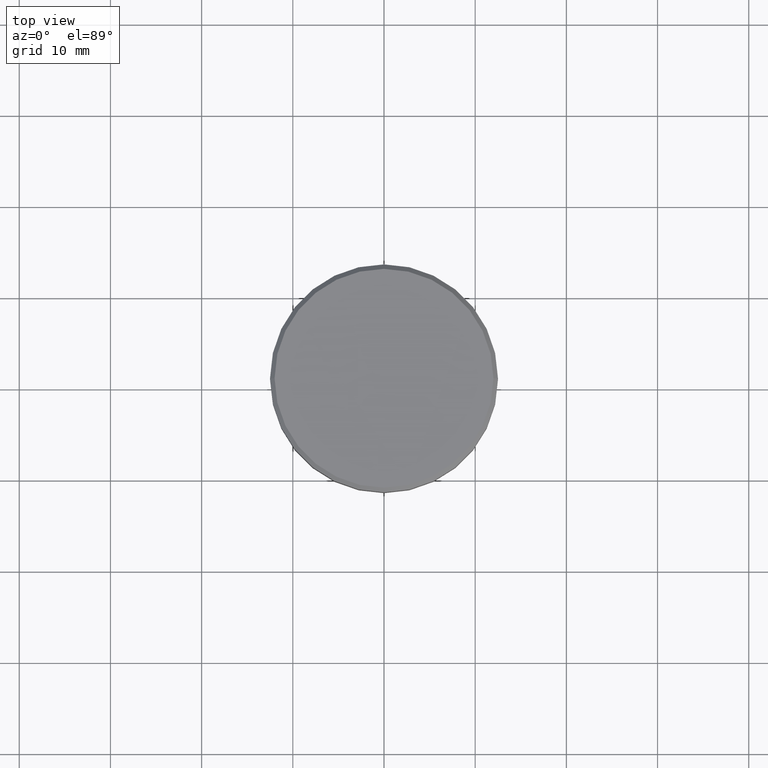
[diagram: clean part render]
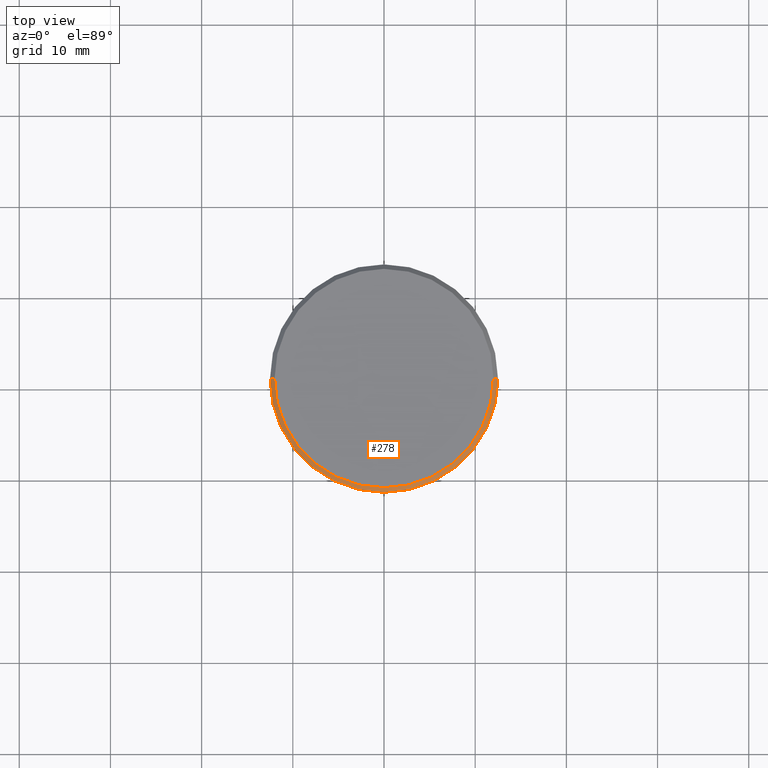
[diagram: same view with one face highlighted and labeled with its STEP entity id]
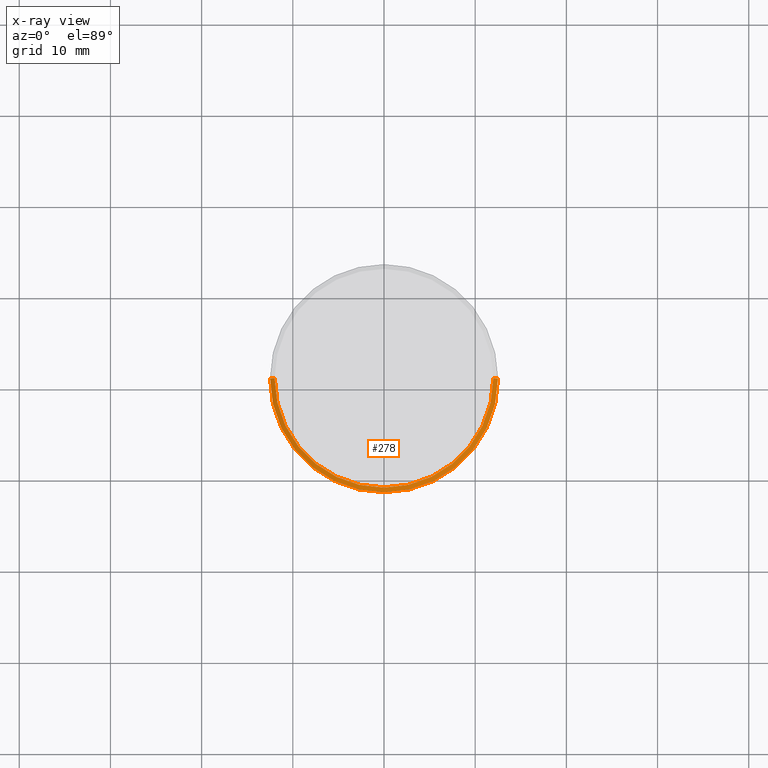
[diagram: x-ray of the same camera — body ghosted, the highlighted face saturated]
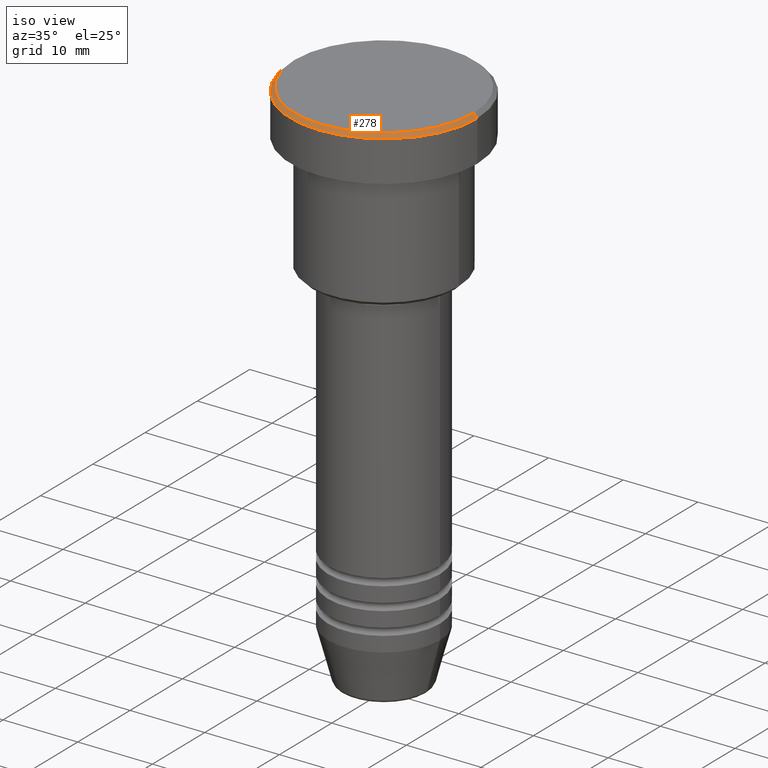
[diagram: same view with one face highlighted and labeled with its STEP entity id]
A machine part, top view. The second image highlights one B-rep face of the part: STEP entity #278.
The next image is the same camera in x-ray: the body ghosted, the highlighted face saturated — about 0% of this face is hidden behind the body in this view.
A second angle (iso view) of the same face is appended — the face is thin or edge-on in the first view.
In plain terms, the highlighted conical surface has half-angle 45 deg.
Its self-contained STEP definition (entity closure, byte-faithful):
#6 = VERTEX_POINT ( 'NONE', #728 ) ;
#13 = ORIENTED_EDGE ( 'NONE', *, *, #26, .F. ) ;
#26 = EDGE_CURVE ( 'NONE', #460, #1175, #456, .T. ) ;
#134 = AXIS2_PLACEMENT_3D ( 'NONE', #700, #144, #342 ) ;
#144 = DIRECTION ( 'NONE',  ( 0.000000000000000000, 0.000000000000000000, -1.000000000000000000 ) ) ;
#146 = EDGE_LOOP ( 'NONE', ( #512, #13, #412, #216 ) ) ;
#164 = VERTEX_POINT ( 'NONE', #674 ) ;
#174 = CARTESIAN_POINT ( 'NONE',  ( -12.00000000000000355, 0.000000000000000000, 0.000000000000000000 ) ) ;
#197 = DIRECTION ( 'NONE',  ( 1.000000000000000000, 0.000000000000000000, 0.000000000000000000 ) ) ;
#208 = VECTOR ( 'NONE', #1066, 1000.000000000000000 ) ;
#216 = ORIENTED_EDGE ( 'NONE', *, *, #1131, .F. ) ;
#278 = ADVANCED_FACE ( 'NONE', ( #599 ), #767, .T. ) ;
#303 = VECTOR ( 'NONE', #567, 1000.000000000000000 ) ;
#342 = DIRECTION ( 'NONE',  ( -1.000000000000000000, 0.000000000000000000, 0.000000000000000000 ) ) ;
#412 = ORIENTED_EDGE ( 'NONE', *, *, #689, .T. ) ;
#422 = CARTESIAN_POINT ( 'NONE',  ( 0.000000000000000000, 0.000000000000000000, -0.5000000000000056621 ) ) ;
#456 = CIRCLE ( 'NONE', #1132, 12.00000000000000355 ) ;
#460 = VERTEX_POINT ( 'NONE', #1061 ) ;
#512 = ORIENTED_EDGE ( 'NONE', *, *, #743, .F. ) ;
#530 = CIRCLE ( 'NONE', #744, 12.50000000000000000 ) ;
#535 = CARTESIAN_POINT ( 'NONE',  ( 12.00000000000000355, 1.500192328955507734E-15, 0.000000000000000000 ) ) ;
#567 = DIRECTION ( 'NONE',  ( 0.7071067811865414665, 8.659560562354858902E-17, -0.7071067811865536790 ) ) ;
#599 = FACE_OUTER_BOUND ( 'NONE', #146, .T. ) ;
#616 = DIRECTION ( 'NONE',  ( 1.000000000000000000, 0.000000000000000000, 0.000000000000000000 ) ) ;
#651 = CARTESIAN_POINT ( 'NONE',  ( 0.000000000000000000, 0.000000000000000000, 0.000000000000000000 ) ) ;
#674 = CARTESIAN_POINT ( 'NONE',  ( -12.50000000000000000, 1.530808498934191521E-15, -0.5000000000000056621 ) ) ;
#689 = EDGE_CURVE ( 'NONE', #460, #164, #894, .T. ) ;
#700 = CARTESIAN_POINT ( 'NONE',  ( 0.000000000000000000, 0.000000000000000000, 0.000000000000000000 ) ) ;
#728 = CARTESIAN_POINT ( 'NONE',  ( 12.50000000000000000, 0.000000000000000000, -0.5000000000000056621 ) ) ;
#743 = EDGE_CURVE ( 'NONE', #1175, #6, #927, .T. ) ;
#744 = AXIS2_PLACEMENT_3D ( 'NONE', #422, #892, #616 ) ;
#767 = CONICAL_SURFACE ( 'NONE', #134, 12.00000000000000355, 0.7853981633974396193 ) ;
#892 = DIRECTION ( 'NONE',  ( 0.000000000000000000, 0.000000000000000000, -1.000000000000000000 ) ) ;
#894 = LINE ( 'NONE', #174, #208 ) ;
#927 = LINE ( 'NONE', #1108, #303 ) ;
#1014 = DIRECTION ( 'NONE',  ( -0.000000000000000000, -0.000000000000000000, 1.000000000000000000 ) ) ;
#1061 = CARTESIAN_POINT ( 'NONE',  ( -12.00000000000000355, 0.000000000000000000, 0.000000000000000000 ) ) ;
#1066 = DIRECTION ( 'NONE',  ( -0.7071067811865414665, 0.000000000000000000, -0.7071067811865536790 ) ) ;
#1108 = CARTESIAN_POINT ( 'NONE',  ( 12.00000000000000355, 1.469576158976824342E-15, 0.000000000000000000 ) ) ;
#1131 = EDGE_CURVE ( 'NONE', #6, #164, #530, .T. ) ;
#1132 = AXIS2_PLACEMENT_3D ( 'NONE', #651, #1014, #197 ) ;
#1175 = VERTEX_POINT ( 'NONE', #535 ) ;